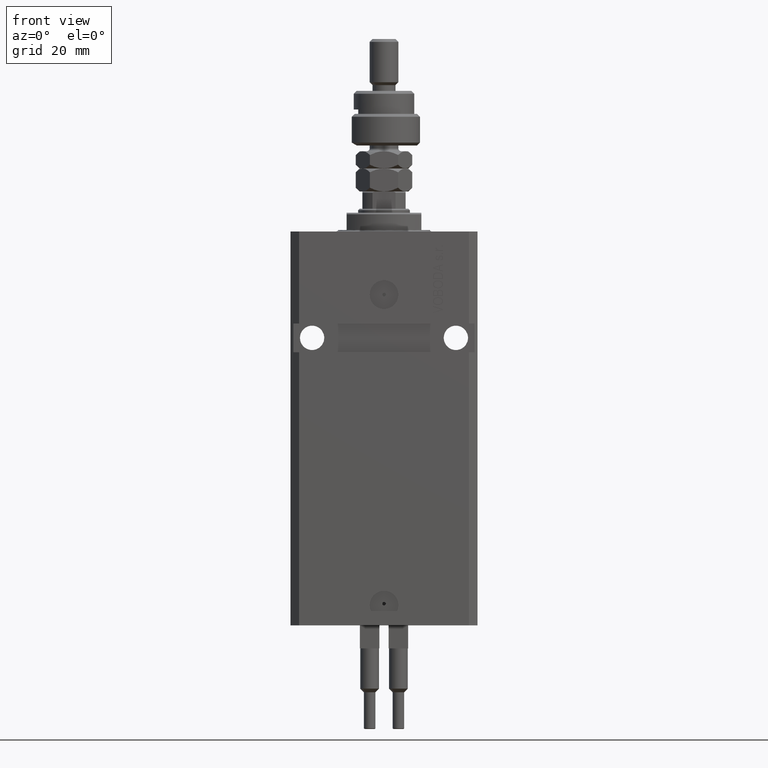
[diagram: clean part render]
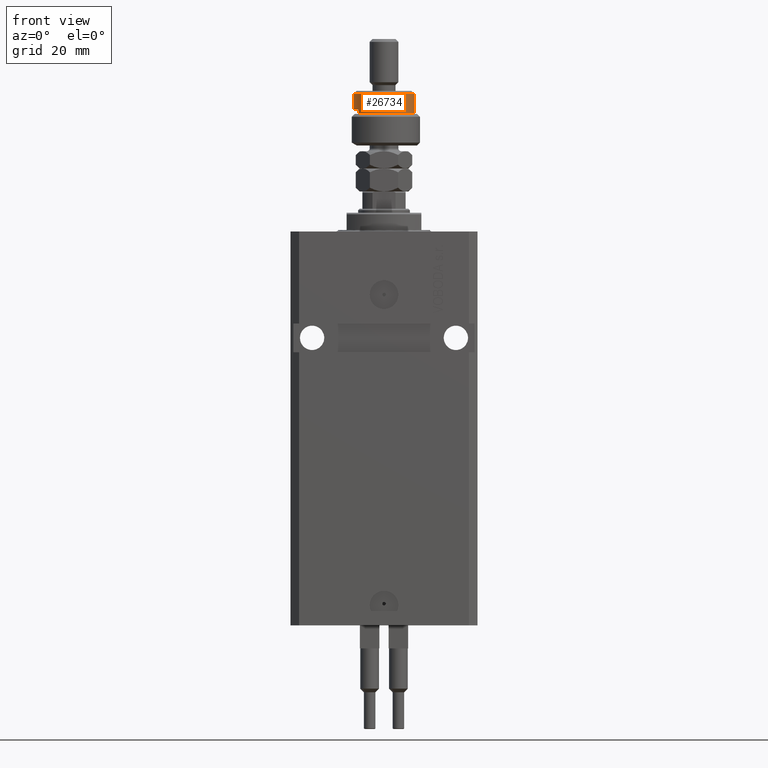
[diagram: same view with one face highlighted and labeled with its STEP entity id]
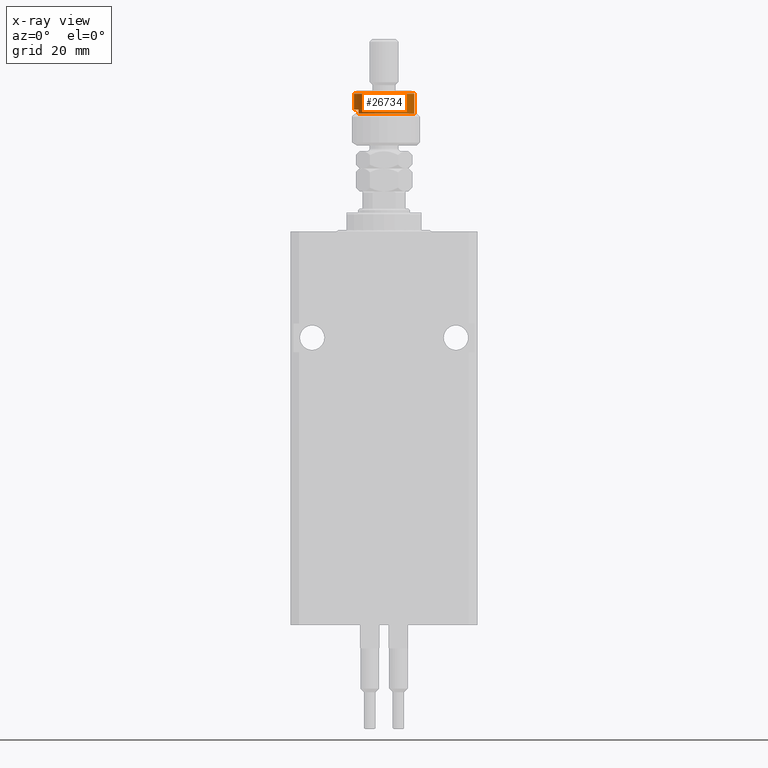
[diagram: x-ray of the same camera — body ghosted, the highlighted face saturated]
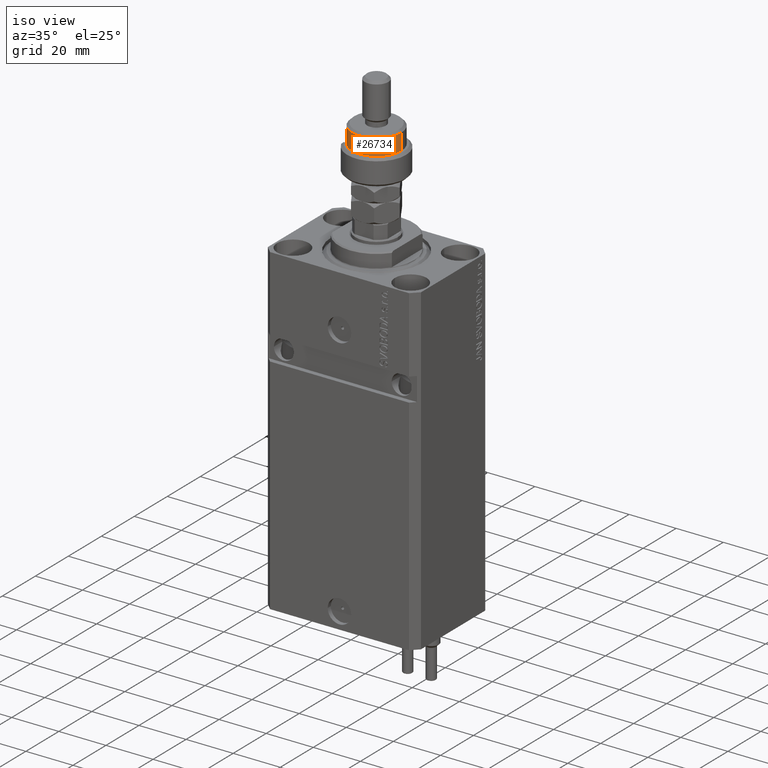
[diagram: same view with one face highlighted and labeled with its STEP entity id]
A machine part, front view. The second image highlights one B-rep face of the part: STEP entity #26734.
The next image is the same camera in x-ray: the body ghosted, the highlighted face saturated — about 0% of this face is hidden behind the body in this view.
A second angle (iso view) of the same face is appended — the face is thin or edge-on in the first view.
In plain terms, the highlighted cylindrical surface (edge-blend (fillet) strip) has radius 10.5 mm, axis along (-0, -0, -1).
Its self-contained STEP definition (entity closure, byte-faithful):
#855 = DIRECTION ( 'NONE',  ( -1.000000000000000000, 0.000000000000000000, 0.000000000000000000 ) ) ;
#1012 = VECTOR ( 'NONE', #2950, 1000.000000000000000 ) ;
#1401 = LINE ( 'NONE', #45060, #37863 ) ;
#2950 = DIRECTION ( 'NONE',  ( -0.000000000000000000, -0.000000000000000000, -1.000000000000000000 ) ) ;
#4088 = CIRCLE ( 'NONE', #16380, 10.50000000000000000 ) ;
#4890 = EDGE_CURVE ( 'NONE', #26718, #28671, #4088, .T. ) ;
#5019 = DIRECTION ( 'NONE',  ( -0.000000000000000000, -0.000000000000000000, -1.000000000000000000 ) ) ;
#5536 = ORIENTED_EDGE ( 'NONE', *, *, #37922, .T. ) ;
#6511 = CARTESIAN_POINT ( 'NONE',  ( 10.50000000000000000, 1.285879139104720831E-15, 17.99999999999999645 ) ) ;
#7538 = EDGE_CURVE ( 'NONE', #38940, #33053, #28809, .T. ) ;
#8696 = FACE_OUTER_BOUND ( 'NONE', #43085, .T. ) ;
#9125 = AXIS2_PLACEMENT_3D ( 'NONE', #34210, #33458, #33713 ) ;
#9131 = ORIENTED_EDGE ( 'NONE', *, *, #4890, .F. ) ;
#11419 = CARTESIAN_POINT ( 'NONE',  ( 10.50000000000000000, 1.285879139104720831E-15, 19.00000000000000000 ) ) ;
#11510 = EDGE_CURVE ( 'NONE', #26718, #40619, #1401, .T. ) ;
#13815 = EDGE_CURVE ( 'NONE', #38940, #32549, #46621, .T. ) ;
#15504 = DIRECTION ( 'NONE',  ( 1.000000000000000000, 0.000000000000000000, 0.000000000000000000 ) ) ;
#15995 = CARTESIAN_POINT ( 'NONE',  ( -10.50000000000000000, 0.000000000000000000, 12.50000000000000000 ) ) ;
#16380 = AXIS2_PLACEMENT_3D ( 'NONE', #24741, #32967, #855 ) ;
#16657 = DIRECTION ( 'NONE',  ( -1.000000000000000000, 0.000000000000000000, 0.000000000000000000 ) ) ;
#17381 = DIRECTION ( 'NONE',  ( -0.000000000000000000, -0.000000000000000000, -1.000000000000000000 ) ) ;
#19376 = CARTESIAN_POINT ( 'NONE',  ( -10.50000000000000000, 0.000000000000000000, 17.99999999999999645 ) ) ;
#19455 = ORIENTED_EDGE ( 'NONE', *, *, #7538, .T. ) ;
#20210 = AXIS2_PLACEMENT_3D ( 'NONE', #40063, #32615, #16657 ) ;
#21303 = CARTESIAN_POINT ( 'NONE',  ( -8.944271909999159220, -5.500000000000000000, 11.00000000000000000 ) ) ;
#24332 = CIRCLE ( 'NONE', #34153, 10.50000000000000000 ) ;
#24390 = CYLINDRICAL_SURFACE ( 'NONE', #20210, 10.50000000000000000 ) ;
#24741 = CARTESIAN_POINT ( 'NONE',  ( 0.000000000000000000, 0.000000000000000000, 12.50000000000000000 ) ) ;
#25113 = CARTESIAN_POINT ( 'NONE',  ( -10.50000000000000000, 0.000000000000000000, 19.00000000000000000 ) ) ;
#26718 = VERTEX_POINT ( 'NONE', #35961 ) ;
#26734 = ADVANCED_FACE ( 'NONE', ( #8696 ), #24390, .T. ) ;
#27259 = CARTESIAN_POINT ( 'NONE',  ( 10.50000000000000000, 1.285879139104720831E-15, 11.00000000000000000 ) ) ;
#28671 = VERTEX_POINT ( 'NONE', #15995 ) ;
#28809 = CIRCLE ( 'NONE', #9125, 10.50000000000000000 ) ;
#29075 = EDGE_CURVE ( 'NONE', #33053, #28671, #48976, .T. ) ;
#30437 = DIRECTION ( 'NONE',  ( 0.000000000000000000, 0.000000000000000000, 1.000000000000000000 ) ) ;
#32549 = VERTEX_POINT ( 'NONE', #27259 ) ;
#32615 = DIRECTION ( 'NONE',  ( -0.000000000000000000, -0.000000000000000000, -1.000000000000000000 ) ) ;
#32967 = DIRECTION ( 'NONE',  ( 0.000000000000000000, 0.000000000000000000, -1.000000000000000000 ) ) ;
#33053 = VERTEX_POINT ( 'NONE', #19376 ) ;
#33458 = DIRECTION ( 'NONE',  ( 0.000000000000000000, 0.000000000000000000, -1.000000000000000000 ) ) ;
#33713 = DIRECTION ( 'NONE',  ( 1.000000000000000000, 0.000000000000000000, 0.000000000000000000 ) ) ;
#34029 = CARTESIAN_POINT ( 'NONE',  ( 0.000000000000000000, 0.000000000000000000, 11.00000000000000000 ) ) ;
#34153 = AXIS2_PLACEMENT_3D ( 'NONE', #34029, #30437, #15504 ) ;
#34210 = CARTESIAN_POINT ( 'NONE',  ( 0.000000000000000000, 0.000000000000000000, 17.99999999999999645 ) ) ;
#35961 = CARTESIAN_POINT ( 'NONE',  ( -8.944271909999159220, -5.500000000000000000, 12.50000000000000000 ) ) ;
#37863 = VECTOR ( 'NONE', #5019, 1000.000000000000000 ) ;
#37922 = EDGE_CURVE ( 'NONE', #40619, #32549, #24332, .T. ) ;
#38940 = VERTEX_POINT ( 'NONE', #6511 ) ;
#40063 = CARTESIAN_POINT ( 'NONE',  ( 0.000000000000000000, 0.000000000000000000, 19.00000000000000000 ) ) ;
#40619 = VERTEX_POINT ( 'NONE', #21303 ) ;
#43085 = EDGE_LOOP ( 'NONE', ( #45360, #19455, #45164, #9131, #47966, #5536 ) ) ;
#43282 = VECTOR ( 'NONE', #17381, 1000.000000000000000 ) ;
#45060 = CARTESIAN_POINT ( 'NONE',  ( -8.944271909999159220, -5.500000000000000000, 19.00000000000000000 ) ) ;
#45164 = ORIENTED_EDGE ( 'NONE', *, *, #29075, .T. ) ;
#45360 = ORIENTED_EDGE ( 'NONE', *, *, #13815, .F. ) ;
#46621 = LINE ( 'NONE', #11419, #1012 ) ;
#47966 = ORIENTED_EDGE ( 'NONE', *, *, #11510, .T. ) ;
#48976 = LINE ( 'NONE', #25113, #43282 ) ;